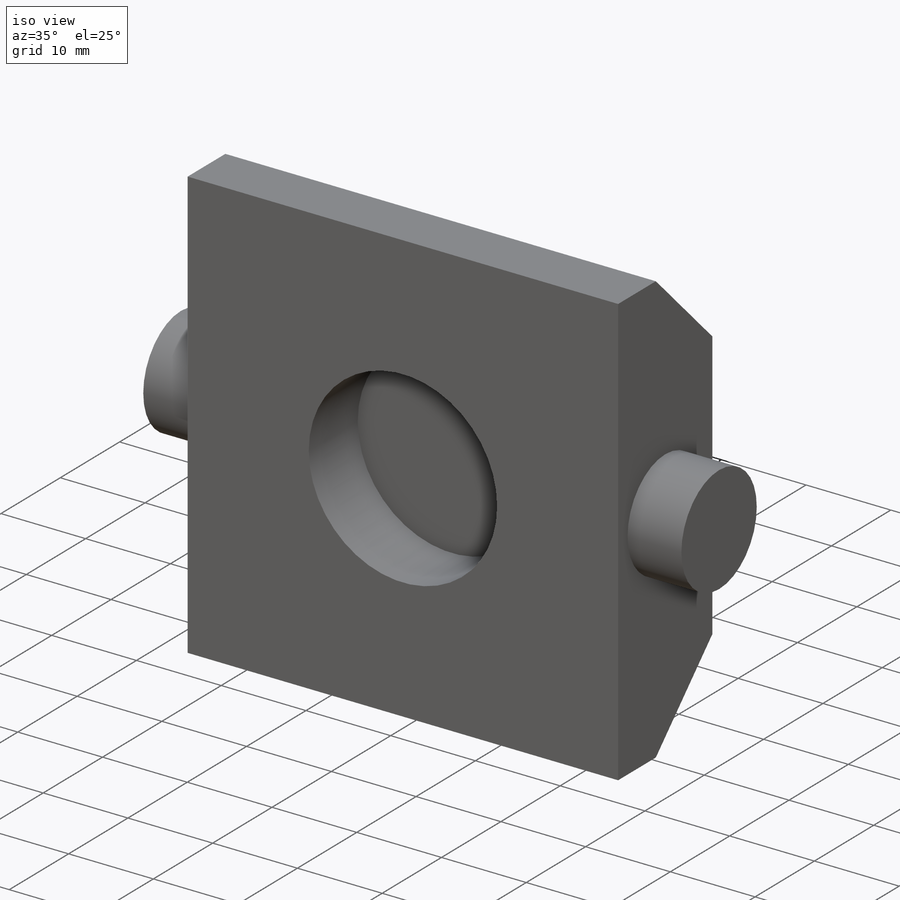
[diagram: iso view]
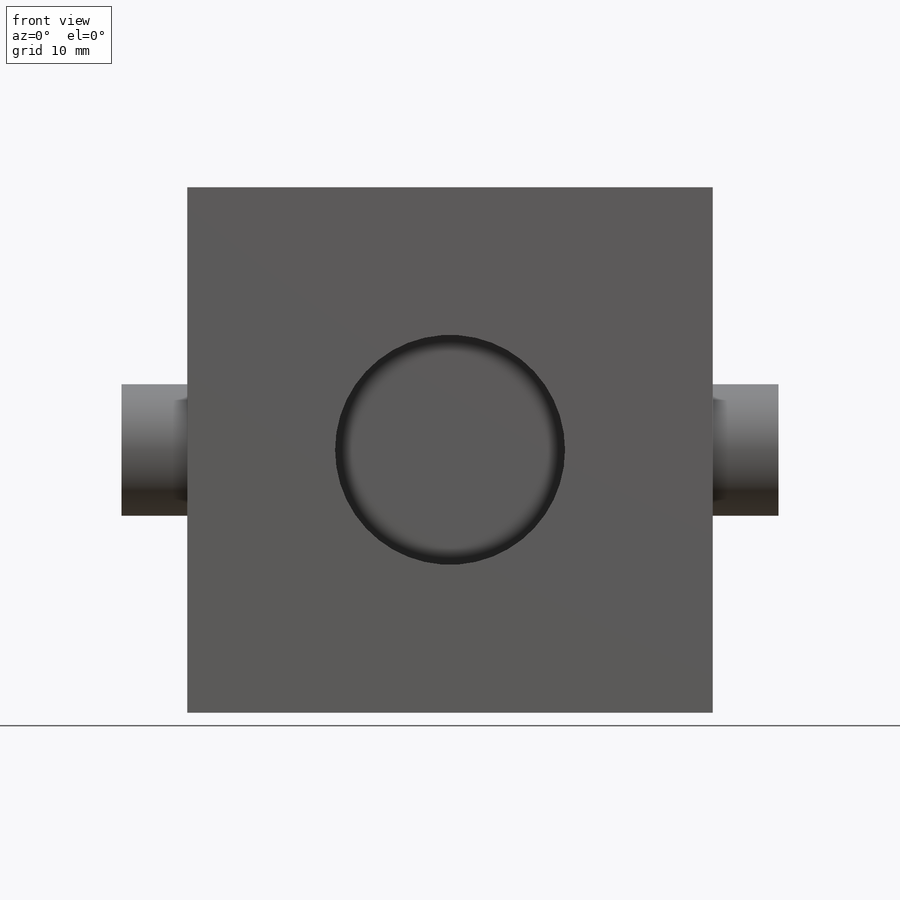
[diagram: front view]
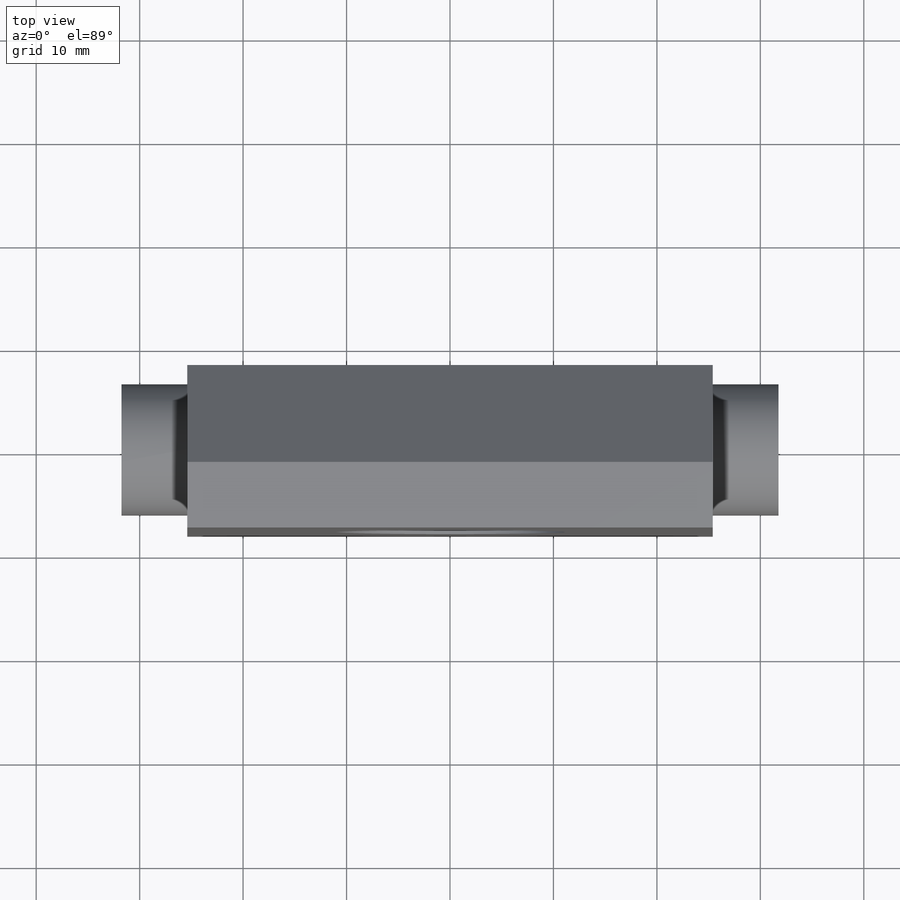
[diagram: top view]
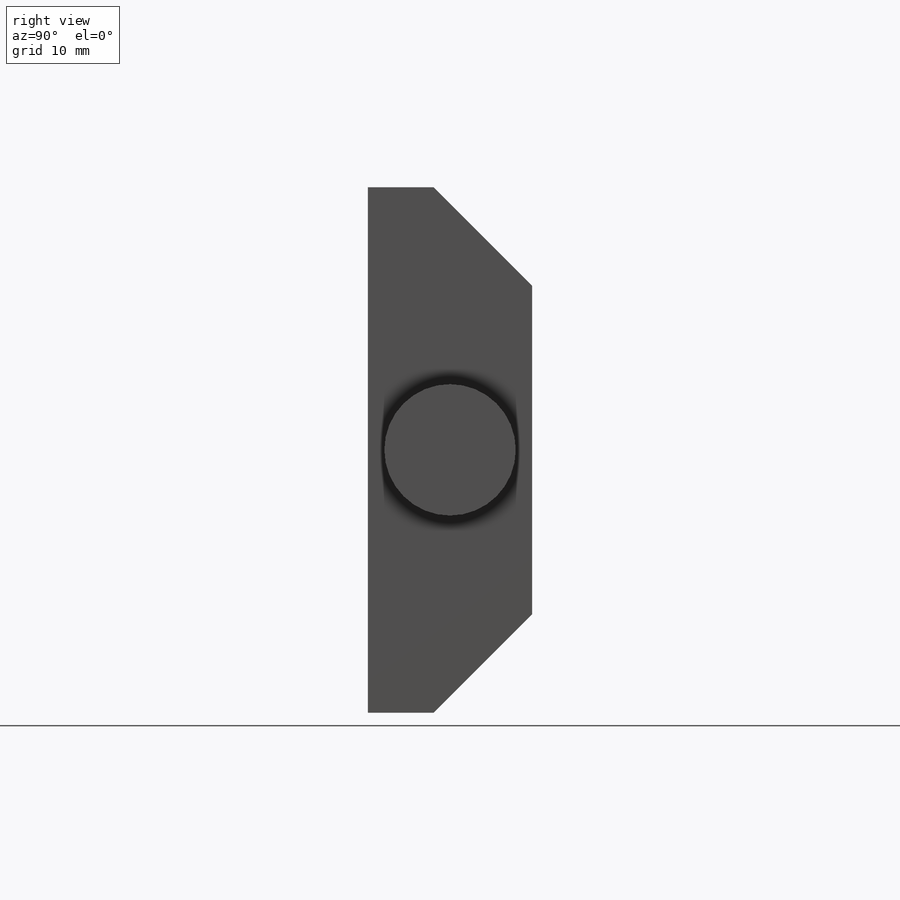
[diagram: right view]
SOLIDWORKS PART (.sldprt)
format: sldprt  version: not decoded by parser v0  size: 407,040 bytes
history: native  units: mm
features: mirror x231, extrude x22, chamfer x5, plane x3, sketch x3, material x1, cut_extrude x1 (+11 scaffold rows collapsed)
feature tree (277):
  scaffold x11  (default folders/planes/origin — collapsed)
  material  "NITRONIC 60"
  plane  "XY"
  plane  "XZ"
  plane  "YZ"
  sketch  "Sketch1"  dims[D1=50.8mm D2=50.8mm]
  extrude  "Extrude1"  Depth=15.875mm
  sketch  "Sketch6"  dims[D1=22.225mm D2=24.5872mm]
  cut_extrude  "Cut-Extrude2"  Depth=8.255mm
  sketch  "Sketch3"  dims[D1=12.7mm D2=7.9375mm]
  extrude  "Extrude3"  Depth=6.35mm
  mirror  "Mirror2"
  chamfer  "Chamfer1"  Distance=9.525mm Angle=45deg ID=401091668
  mirror  "ID"
  extrude  "stress:Material-1"  [1 undecoded]
  mirror  "cosMaterialEX"
  mirror  "cosMaterialNUXY"
  mirror  "cosMaterialGXY"
  mirror  "cosMaterialALPX"
  mirror  "cosMaterialDENS"
  mirror  "cosMaterialKX"
  mirror  "cosMaterialC"
  mirror  "Units"
  mirror  "AnalysisType"
  mirror  "MeshType"
  mirror  "cosMaterialSIGYLD"
  mirror  "cosMaterialSIGXT"
  mirror  "cosMaterialSIGXC"  sMaterialName=0 cosFMVItemName=0 cosMaterialName=0 cosComponentName=0
  mirror  "cosMaterialModel"
  mirror  "cosMaterialEY"
  mirror  "cosMaterialEZ"
  mirror  "cosMaterialNUXZ"
  mirror  "cosMaterialNUYZ"
  mirror  "cosMaterialGXZ"
  mirror  "cosMaterialGYZ"
  mirror  "cosMaterialALPY"
  mirror  "cosMaterialALPZ"
  mirror  "cosMaterialKY"
  mirror  "cosMaterialKZ"  cosMaterialType=0 cosMaterialLibFile=0 cosMaterialRefPlaneName=0
  mirror  "cosMaterialSource"
  chamfer  "cosMaterial7"  [1 undecoded]
  mirror  "cosMaterialEX"
  mirror  "cosMaterialNUXY"
  mirror  "cosMaterialGXY"
  mirror  "cosMaterialALPX"
  mirror  "cosMaterialDENS"
  mirror  "cosMaterialKX"
  mirror  "cosMaterialC"
  mirror  "Units"
  mirror  "AnalysisType"
  mirror  "MeshType"
  mirror  "cosMaterialSIGYLD"
  mirror  "cosMaterialSIGXT"
  mirror  "cosMaterialSIGXC"  sMaterialSourceName=0 sMaterialName=0 cosFMVItemName=0 cosMaterialName=0 cosComponentName=0
  mirror  "cosMaterialModel"
  mirror  "cosMaterialEY"
  mirror  "cosMaterialEZ"
  mirror  "cosMaterialNUXZ"
  mirror  "cosMaterialNUYZ"
  mirror  "cosMaterialGXZ"
  mirror  "cosMaterialGYZ"
  mirror  "cosMaterialALPY"
  mirror  "cosMaterialALPZ"
  mirror  "cosMaterialKY"
  mirror  "cosMaterialKZ"  cosMaterialType=0 cosMaterialLibFile=0 cosMaterialRefPlaneName=0
  mirror  "cosMaterialSource"
  extrude  "stress:Restraint1-1"  [1 undecoded]
  mirror  "RestraintType"
  mirror  "Value"
  mirror  "cosRestraintComp:1"
  mirror  "cosRestraintComp:2"
  mirror  "cosRestraintComp:3"
  mirror  "cosRestraintComp:4"
  mirror  "cosRestraintComp:5"
  mirror  "cosRestraintComp:6"
  mirror  "Unit"
  mirror  "AnalysisType"
  mirror  "MeshType"
  mirror  "cosRestraintCompCheck1"
  mirror  "cosRestraintCompCheck2"
  mirror  "cosRestraintCompCheck3"
  mirror  "cosRestraintCompCheck4"
  mirror  "cosRestraintCompCheck5"
  mirror  "cosRestraintCompCheck6"
  mirror  "cosRestraintRefPlaneSet"
  mirror  "cosRestraintRefPlaneOrigin1"
  mirror  "cosRestraintRefPlaneOrigin2"
  mirror  "cosRestraintRefPlaneOrigin3"
  mirror  "cosRestraintRefPlaneXDir1"
  mirror  "cosRestraintRefPlaneXDir2"
  mirror  "cosRestraintRefPlaneXDir3"
  mirror  "cosRestraintRefPlaneNormal1"
  mirror  "cosRestraintRefPlaneNormal2"
  mirror  "cosRestraintRefPlaneNormal3"  cosRestraintRefPlaneName=0
  mirror  "cosRestraintCoordSystemType"
  mirror  "cosRestraintFaceTypeMask"  cosFMVItemName=0 cosLBCSymbolColor=0
  mirror  "cosLBCState"
  chamfer  "cosRestraint7"  [1 undecoded]
  mirror  "RestraintType"
  mirror  "Value"
  mirror  "cosRestraintComp:1"
  mirror  "cosRestraintComp:2"
  mirror  "cosRestraintComp:3"
  mirror  "cosRestraintComp:4"
  mirror  "cosRestraintComp:5"
  mirror  "cosRestraintComp:6"
  mirror  "Unit"
  mirror  "AnalysisType"
  mirror  "MeshType"
  mirror  "cosRestraintCompCheck1"
  mirror  "cosRestraintCompCheck2"
  mirror  "cosRestraintCompCheck3"
  mirror  "cosRestraintCompCheck4"
  mirror  "cosRestraintCompCheck5"
  mirror  "cosRestraintCompCheck6"
  mirror  "cosRestraintRefPlaneSet"
  mirror  "cosRestraintRefPlaneOrigin1"
  mirror  "cosRestraintRefPlaneOrigin2"
  mirror  "cosRestraintRefPlaneOrigin3"
  mirror  "cosRestraintRefPlaneXDir1"
  mirror  "cosRestraintRefPlaneXDir2"
  mirror  "cosRestraintRefPlaneXDir3"
  mirror  "cosRestraintRefPlaneNormal1"
  mirror  "cosRestraintRefPlaneNormal2"
  mirror  "cosRestraintRefPlaneNormal3"  cosRestraintRefPlaneName=0
  mirror  "cosRestraintCoordSystemType"
  mirror  "cosRestraintFaceTypeMask"  cosFMVItemName=0 cosLBCSymbolColor=0
  mirror  "cosLBCState"
  extrude  "stress:Restraint1-2"  [1 undecoded]
  mirror  "RestraintType"
  mirror  "Value"
  mirror  "cosRestraintComp:1"
  mirror  "cosRestraintComp:2"
  mirror  "cosRestraintComp:3"
  mirror  "cosRestraintComp:4"
  mirror  "cosRestraintComp:5"
  mirror  "cosRestraintComp:6"
  mirror  "Unit"
  mirror  "AnalysisType"
  mirror  "MeshType"
  mirror  "cosRestraintCompCheck1"
  mirror  "cosRestraintCompCheck2"
  mirror  "cosRestraintCompCheck3"
  mirror  "cosRestraintCompCheck4"
  mirror  "cosRestraintCompCheck5"
  mirror  "cosRestraintCompCheck6"
  mirror  "cosRestraintRefPlaneSet"
  mirror  "cosRestraintRefPlaneOrigin1"
  mirror  "cosRestraintRefPlaneOrigin2"
  mirror  "cosRestraintRefPlaneOrigin3"
  mirror  "cosRestraintRefPlaneXDir1"
  mirror  "cosRestraintRefPlaneXDir2"
  mirror  "cosRestraintRefPlaneXDir3"
  mirror  "cosRestraintRefPlaneNormal1"
  mirror  "cosRestraintRefPlaneNormal2"
  mirror  "cosRestraintRefPlaneNormal3"  cosRestraintRefPlaneName=0
  mirror  "cosRestraintCoordSystemType"
  mirror  "cosRestraintFaceTypeMask"  cosFMVItemName=0 cosLBCSymbolColor=0
  mirror  "cosLBCState"
  extrude  "stress:Force1-1"  [1 undecoded]
  mirror  "cosForceComp:1"
  mirror  "cosForceComp:2"
  mirror  "cosForceComp:3"
  mirror  "cosForceComp:4"
  mirror  "cosForceComp:5"
  mirror  "cosForceComp:6"
  mirror  "cosForceTorqueNF"
  mirror  "cosForceCompCheck1"
  mirror  "cosForceCompCheck2"
  mirror  "cosForceCompCheck3"
  mirror  "cosForceCompCheck4"
  mirror  "cosForceCompCheck5"
  mirror  "cosForceCompCheck6"
  mirror  "Unit"
  mirror  "AnalysisType"
  mirror  "MeshType"
  mirror  "cosForceRefPlaneSet"
  mirror  "cosForceRefPlaneOrigin1"
  mirror  "cosForceRefPlaneOrigin2"
  mirror  "cosForceRefPlaneOrigin3"
  mirror  "cosForceRefPlaneXDir1"
  mirror  "cosForceRefPlaneXDir2"
  mirror  "cosForceRefPlaneXDir3"
  mirror  "cosForceRefPlaneNormal1"
  mirror  "cosForceRefPlaneNormal2"
  mirror  "cosForceRefPlaneNormal3"  cosForceRefPlaneName=0
  mirror  "cosForceCoordSystemType"
  mirror  "cosForceType"  cosFMVItemName=0
  mirror  "cosDistributionType"  cosDistributionCoordSysName=0
  mirror  "cosDistributionCoef1"
  mirror  "cosDistributionCoef2"
  mirror  "cosDistributionCoef3"
  mirror  "cosDistributionCoef4"
  mirror  "cosDistributionCoef5"
  mirror  "cosDistributionCoef6"  cosLBCSymbolColor=0
  mirror  "cosLBCState"
  chamfer  "cosForce7"  [1 undecoded]
  mirror  "cosForceComp:1"
  mirror  "cosForceComp:2"
  mirror  "cosForceComp:3"
  mirror  "cosForceComp:4"
  mirror  "cosForceComp:5"
  mirror  "cosForceComp:6"
  mirror  "cosForceTorqueNF"
  mirror  "cosForceCompCheck1"
  mirror  "cosForceCompCheck2"
  mirror  "cosForceCompCheck3"
  mirror  "cosForceCompCheck4"
  mirror  "cosForceCompCheck5"
  mirror  "cosForceCompCheck6"
  mirror  "Unit"
  mirror  "AnalysisType"
  mirror  "MeshType"
  mirror  "cosForceRefPlaneSet"
  mirror  "cosForceRefPlaneOrigin1"
  mirror  "cosForceRefPlaneOrigin2"
  mirror  "cosForceRefPlaneOrigin3"
  mirror  "cosForceRefPlaneXDir1"
  mirror  "cosForceRefPlaneXDir2"
  mirror  "cosForceRefPlaneXDir3"
  mirror  "cosForceRefPlaneNormal1"
  mirror  "cosForceRefPlaneNormal2"
  mirror  "cosForceRefPlaneNormal3"  cosForceRefPlaneName=0
  mirror  "cosForceCoordSystemType"
  mirror  "cosForceType"  cosFMVItemName=0
  mirror  "cosDistributionType"  cosDistributionCoordSysName=0
  mirror  "cosDistributionCoef1"
  mirror  "cosDistributionCoef2"
  mirror  "cosDistributionCoef3"
  mirror  "cosDistributionCoef4"
  mirror  "cosDistributionCoef5"
  mirror  "cosDistributionCoef6"  cosLBCSymbolColor=0
  mirror  "cosLBCState"
  extrude  "FaceID-1"  [1 undecoded]
  mirror  "faceID"
  chamfer  "cosFaceID"  [1 undecoded]
  mirror  "faceID"
  extrude  "FaceID-2"  [1 undecoded]
  mirror  "faceID"
  extrude  "FaceID-3"  [1 undecoded]
  mirror  "faceID"
  extrude  "FaceID-4"  [1 undecoded]
  mirror  "faceID"
  extrude  "FaceID-5"  [1 undecoded]
  mirror  "faceID"
  extrude  "FaceID-6"  [1 undecoded]
  mirror  "faceID"
  extrude  "FaceID-7"  [1 undecoded]
  mirror  "faceID"
  extrude  "FaceID-8"  [1 undecoded]
  mirror  "faceID"
  extrude  "FaceID-9"  [1 undecoded]
  mirror  "faceID"
  extrude  "FaceID-10"  [1 undecoded]
  mirror  "faceID"
  extrude  "FaceID-11"  [1 undecoded]
  mirror  "faceID"
  extrude  "FaceID-12"  [1 undecoded]
  mirror  "faceID"
  extrude  "FaceID-13"  [1 undecoded]
  mirror  "faceID"
  extrude  "FaceID-14"  [1 undecoded]
  mirror  "faceID"
  extrude  "FaceID-15"  [1 undecoded]
  mirror  "faceID"
  extrude  "FaceID-16"  [1 undecoded]
  mirror  "faceID"
decode coverage: 25 of 262 modeling features carry decoded parameters
note: 24 parameter values undecoded
summary: no parameter record found for 24 features
note: suppression state not decoded; provenance and decode notes live in map.json
